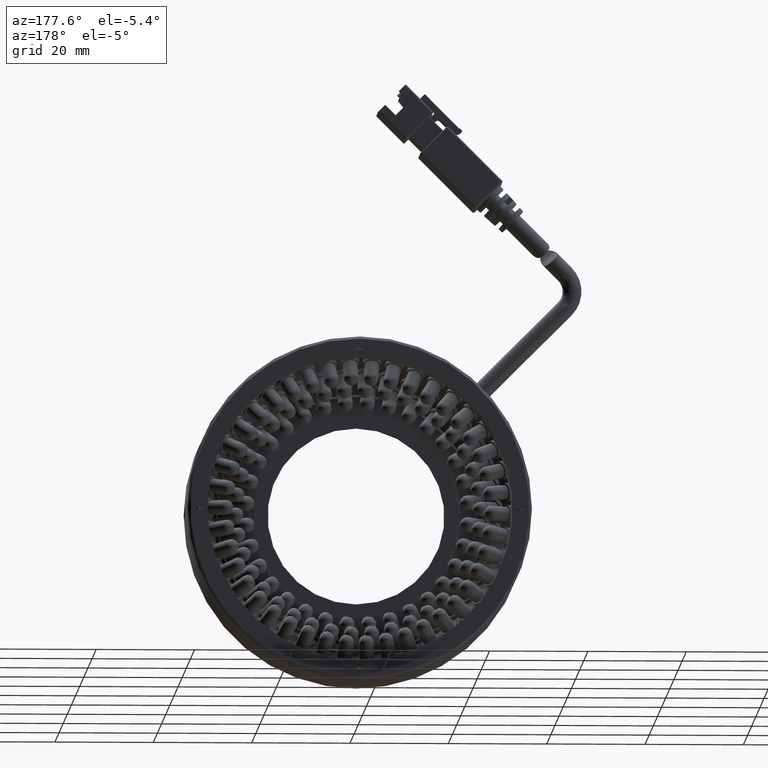
[diagram: clean part render]
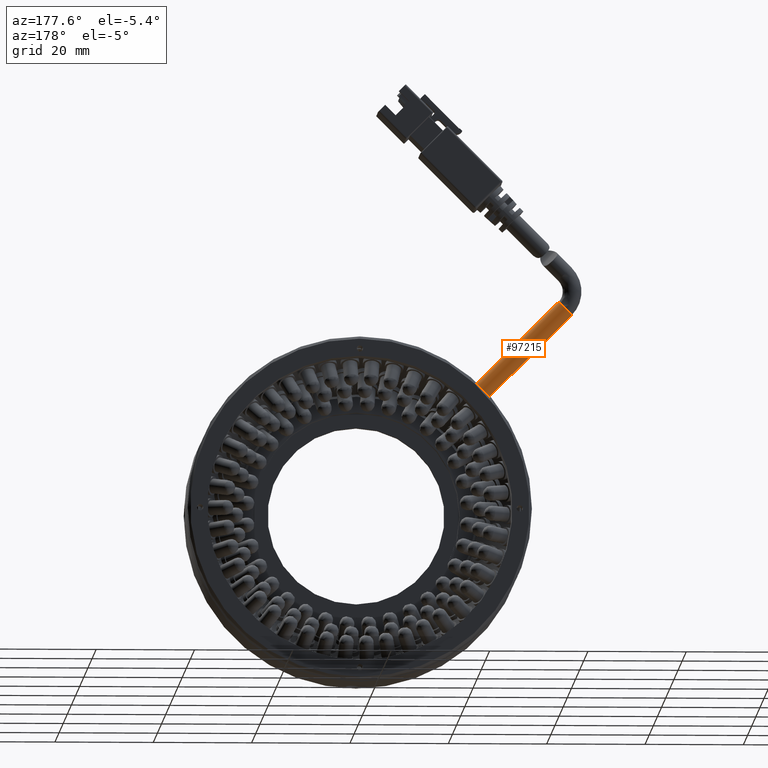
[diagram: same view with one face highlighted and labeled with its STEP entity id]
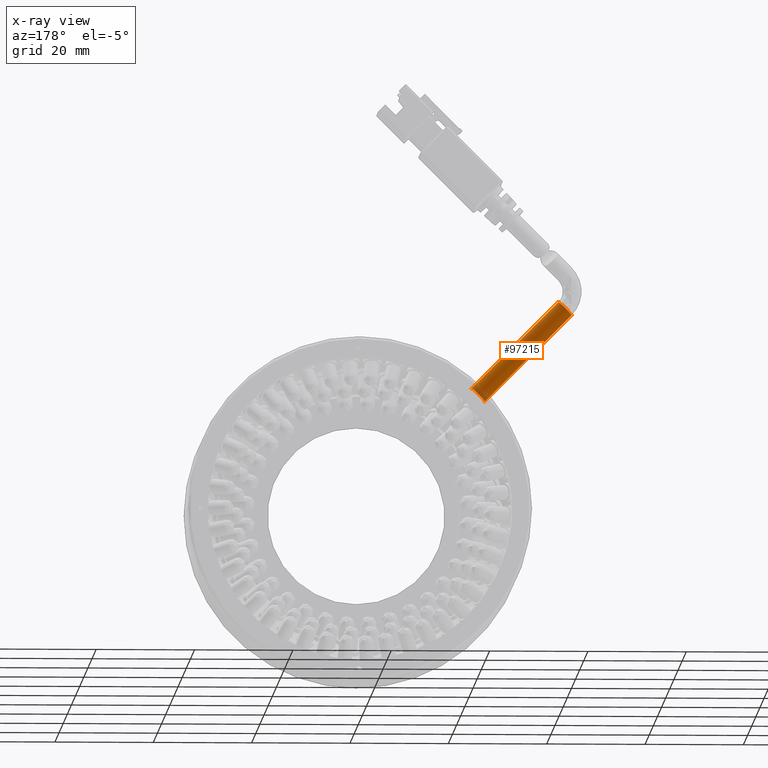
[diagram: x-ray of the same camera — body ghosted, the highlighted face saturated]
A machine part, auxiliary view. The second image highlights one B-rep face of the part: STEP entity #97215.
The next image is the same camera in x-ray: the body ghosted, the highlighted face saturated — about 5% of this face is hidden behind the body in this view.
In plain terms, the highlighted cylindrical surface (edge-blend (fillet) strip) has radius 1.9 mm, axis along (0.7071, 0, -0.7071).
Its self-contained STEP definition (entity closure, byte-faithful):
#22 = DIRECTION ( 'NONE',  ( 0.7071067811865435800, 4.906538933385487800E-018, -0.7071067811865514600 ) ) ;
#494 = VERTEX_POINT ( 'NONE', #62091 ) ;
#1362 = LINE ( 'NONE', #79075, #60534 ) ;
#2572 = VERTEX_POINT ( 'NONE', #17237 ) ;
#5024 = EDGE_LOOP ( 'NONE', ( #96552, #63848, #56245, #47451 ) ) ;
#17237 = CARTESIAN_POINT ( 'NONE',  ( -63.31600378616826700, -23.18693679055956400, 10.30280897231980000 ) ) ;
#26247 = DIRECTION ( 'NONE',  ( 0.7071067811865435800, 4.906538933385487800E-018, -0.7071067811865514600 ) ) ;
#28792 = DIRECTION ( 'NONE',  ( -0.7071067811865435800, -4.906538933385487800E-018, 0.7071067811865514600 ) ) ;
#30097 = AXIS2_PLACEMENT_3D ( 'NONE', #76874, #28792, #85011 ) ;
#35302 = EDGE_CURVE ( 'NONE', #494, #2572, #99089, .T. ) ;
#47019 = DIRECTION ( 'NONE',  ( -0.7071067811865502400, 0.0000000000000000000, -0.7071067811865448000 ) ) ;
#47451 = ORIENTED_EDGE ( 'NONE', *, *, #35302, .F. ) ;
#48216 = CARTESIAN_POINT ( 'NONE',  ( -79.65017043157740800, -23.18693679055956400, 29.32398138623801000 ) ) ;
#50595 = CIRCLE ( 'NONE', #91731, 1.899999999999997700 ) ;
#53483 = EDGE_CURVE ( 'NONE', #95514, #74549, #1362, .T. ) ;
#54769 = CARTESIAN_POINT ( 'NONE',  ( -79.65017043157740800, -23.18693679055956400, 29.32398138623801400 ) ) ;
#56245 = ORIENTED_EDGE ( 'NONE', *, *, #101234, .T. ) ;
#56332 = DIRECTION ( 'NONE',  ( -0.7071067811865502400, 0.0000000000000000000, -0.7071067811865448000 ) ) ;
#57871 = FACE_OUTER_BOUND ( 'NONE', #5024, .T. ) ;
#60531 = CARTESIAN_POINT ( 'NONE',  ( -78.30666754732295900, -23.18693679055956700, 30.66748427049244100 ) ) ;
#60534 = VECTOR ( 'NONE', #87173, 1000.000000000000000 ) ;
#62091 = CARTESIAN_POINT ( 'NONE',  ( -80.99367331583184200, -23.18693679055956700, 27.98047850198357300 ) ) ;
#62832 = DIRECTION ( 'NONE',  ( 0.7071067811865435800, 4.906538933385487800E-018, -0.7071067811865514600 ) ) ;
#63848 = ORIENTED_EDGE ( 'NONE', *, *, #53483, .T. ) ;
#69117 = CYLINDRICAL_SURFACE ( 'NONE', #80785, 1.899999999999997700 ) ;
#74353 = CARTESIAN_POINT ( 'NONE',  ( -80.99367331583184200, -23.18693679055956400, 27.98047850198358000 ) ) ;
#74549 = VERTEX_POINT ( 'NONE', #99928 ) ;
#75090 = VECTOR ( 'NONE', #26247, 1000.000000000000000 ) ;
#76874 = CARTESIAN_POINT ( 'NONE',  ( -61.97250090191382600, -23.18693679055956400, 11.64631185657422700 ) ) ;
#79075 = CARTESIAN_POINT ( 'NONE',  ( -78.30666754732295900, -23.18693679055956400, 30.66748427049244800 ) ) ;
#80785 = AXIS2_PLACEMENT_3D ( 'NONE', #54769, #62832, #47019 ) ;
#85011 = DIRECTION ( 'NONE',  ( -0.7071067811865525700, 0.0000000000000000000, -0.7071067811865424700 ) ) ;
#87173 = DIRECTION ( 'NONE',  ( 0.7071067811865435800, 4.906538933385487800E-018, -0.7071067811865514600 ) ) ;
#89235 = EDGE_CURVE ( 'NONE', #494, #95514, #50595, .T. ) ;
#91731 = AXIS2_PLACEMENT_3D ( 'NONE', #48216, #22, #56332 ) ;
#95514 = VERTEX_POINT ( 'NONE', #60531 ) ;
#96552 = ORIENTED_EDGE ( 'NONE', *, *, #89235, .T. ) ;
#97215 = ADVANCED_FACE ( 'NONE', ( #57871 ), #69117, .T. ) ;
#99089 = LINE ( 'NONE', #74353, #75090 ) ;
#99125 = CIRCLE ( 'NONE', #30097, 1.900000000000001200 ) ;
#99928 = CARTESIAN_POINT ( 'NONE',  ( -60.62899801765937700, -23.18693679055956400, 12.98981474082866500 ) ) ;
#101234 = EDGE_CURVE ( 'NONE', #74549, #2572, #99125, .T. ) ;